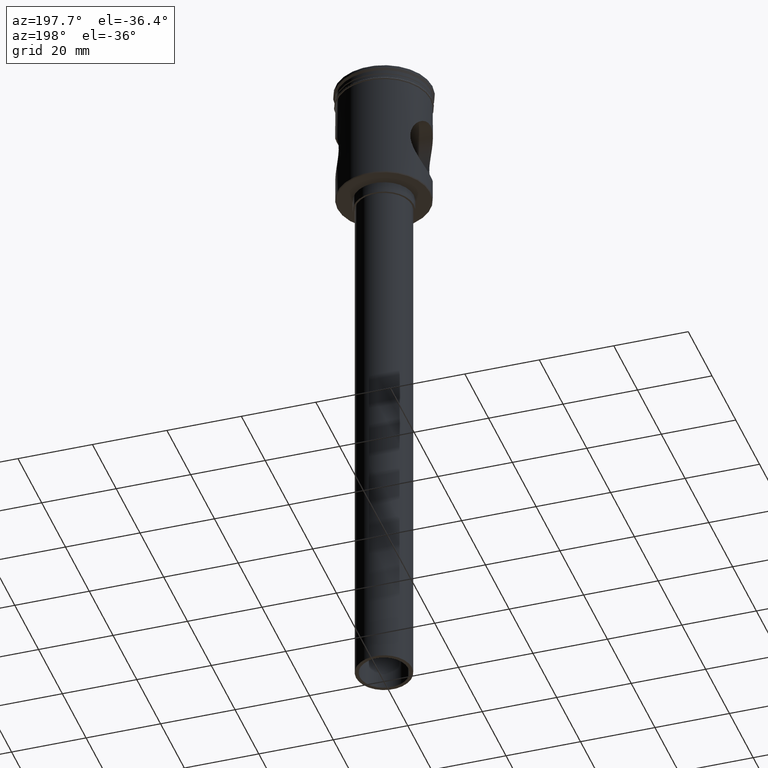
[diagram: clean part render]
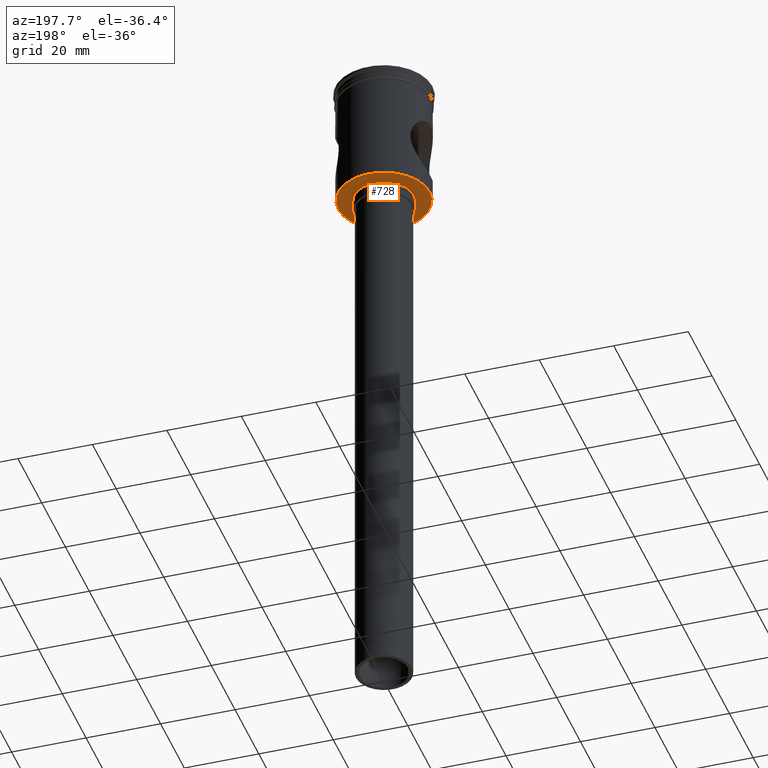
[diagram: same view with one face highlighted and labeled with its STEP entity id]
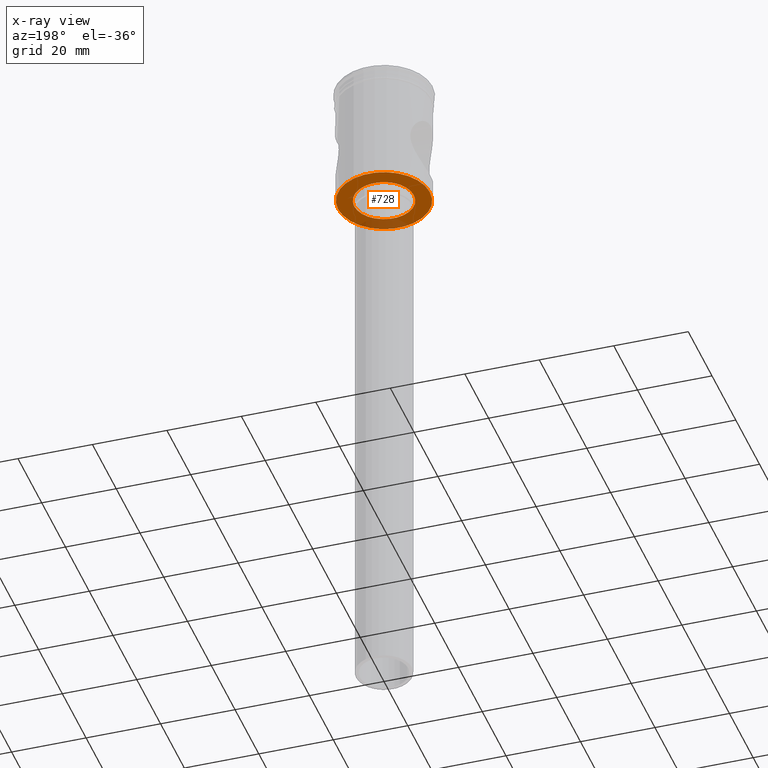
[diagram: x-ray of the same camera — body ghosted, the highlighted face saturated]
A machine part, auxiliary view. The second image highlights one B-rep face of the part: STEP entity #728.
The next image is the same camera in x-ray: the body ghosted, the highlighted face saturated — about 15% of this face is hidden behind the body in this view.
In plain terms, the highlighted planar face has unit normal (0, 0, -1).
Its self-contained STEP definition (entity closure, byte-faithful):
#44 = DIRECTION ( 'NONE',  ( -1.000000000000000000, 0.000000000000000000, 0.000000000000000000 ) ) ;
#104 = EDGE_CURVE ( 'NONE', #317, #1387, #1373, .T. ) ;
#124 = CARTESIAN_POINT ( 'NONE',  ( 0.000000000000000000, 0.000000000000000000, -33.50000000000000000 ) ) ;
#186 = CARTESIAN_POINT ( 'NONE',  ( 0.000000000000000000, 0.000000000000000000, -33.50000000000000000 ) ) ;
#219 = DIRECTION ( 'NONE',  ( 0.000000000000000000, 0.000000000000000000, -1.000000000000000000 ) ) ;
#222 = EDGE_LOOP ( 'NONE', ( #693, #1237 ) ) ;
#239 = ORIENTED_EDGE ( 'NONE', *, *, #104, .F. ) ;
#275 = FACE_BOUND ( 'NONE', #300, .T. ) ;
#300 = EDGE_LOOP ( 'NONE', ( #733, #239 ) ) ;
#317 = VERTEX_POINT ( 'NONE', #1541 ) ;
#330 = VERTEX_POINT ( 'NONE', #1519 ) ;
#369 = VERTEX_POINT ( 'NONE', #737 ) ;
#400 = CARTESIAN_POINT ( 'NONE',  ( 0.000000000000000000, 0.000000000000000000, -33.50000000000000000 ) ) ;
#405 = CIRCLE ( 'NONE', #1395, 12.29999999999999361 ) ;
#458 = DIRECTION ( 'NONE',  ( 0.000000000000000000, 0.000000000000000000, -1.000000000000000000 ) ) ;
#474 = DIRECTION ( 'NONE',  ( -1.000000000000000000, 0.000000000000000000, 0.000000000000000000 ) ) ;
#592 = CARTESIAN_POINT ( 'NONE',  ( 0.000000000000000000, 0.000000000000000000, -33.50000000000000000 ) ) ;
#655 = DIRECTION ( 'NONE',  ( 0.000000000000000000, 0.000000000000000000, -1.000000000000000000 ) ) ;
#693 = ORIENTED_EDGE ( 'NONE', *, *, #881, .T. ) ;
#728 = ADVANCED_FACE ( 'NONE', ( #1478, #275 ), #880, .T. ) ;
#733 = ORIENTED_EDGE ( 'NONE', *, *, #946, .F. ) ;
#737 = CARTESIAN_POINT ( 'NONE',  ( -12.29999999999999361, 1.518562030942717573E-15, -33.50000000000000000 ) ) ;
#822 = DIRECTION ( 'NONE',  ( -1.000000000000000000, 0.000000000000000000, 0.000000000000000000 ) ) ;
#880 = PLANE ( 'NONE',  #1064 ) ;
#881 = EDGE_CURVE ( 'NONE', #330, #369, #1085, .T. ) ;
#946 = EDGE_CURVE ( 'NONE', #1387, #317, #1175, .T. ) ;
#948 = AXIS2_PLACEMENT_3D ( 'NONE', #592, #458, #1158 ) ;
#1059 = DIRECTION ( 'NONE',  ( 0.000000000000000000, 0.000000000000000000, -1.000000000000000000 ) ) ;
#1064 = AXIS2_PLACEMENT_3D ( 'NONE', #1246, #655, #1126 ) ;
#1085 = CIRCLE ( 'NONE', #1218, 12.29999999999999361 ) ;
#1126 = DIRECTION ( 'NONE',  ( -1.000000000000000000, 0.000000000000000000, -0.000000000000000000 ) ) ;
#1153 = DIRECTION ( 'NONE',  ( 0.000000000000000000, 0.000000000000000000, -1.000000000000000000 ) ) ;
#1158 = DIRECTION ( 'NONE',  ( -1.000000000000000000, 0.000000000000000000, 0.000000000000000000 ) ) ;
#1175 = CIRCLE ( 'NONE', #1490, 8.000000000000000000 ) ;
#1218 = AXIS2_PLACEMENT_3D ( 'NONE', #186, #219, #822 ) ;
#1237 = ORIENTED_EDGE ( 'NONE', *, *, #1488, .T. ) ;
#1246 = CARTESIAN_POINT ( 'NONE',  ( 0.000000000000000000, 12.49999999999999289, -33.50000000000000000 ) ) ;
#1373 = CIRCLE ( 'NONE', #948, 8.000000000000000000 ) ;
#1387 = VERTEX_POINT ( 'NONE', #1515 ) ;
#1395 = AXIS2_PLACEMENT_3D ( 'NONE', #124, #1059, #474 ) ;
#1478 = FACE_OUTER_BOUND ( 'NONE', #222, .T. ) ;
#1488 = EDGE_CURVE ( 'NONE', #369, #330, #405, .T. ) ;
#1490 = AXIS2_PLACEMENT_3D ( 'NONE', #400, #1153, #44 ) ;
#1515 = CARTESIAN_POINT ( 'NONE',  ( 8.000000000000000000, 0.000000000000000000, -33.50000000000000000 ) ) ;
#1519 = CARTESIAN_POINT ( 'NONE',  ( 12.29999999999999361, 0.000000000000000000, -33.50000000000000000 ) ) ;
#1541 = CARTESIAN_POINT ( 'NONE',  ( -8.000000000000000000, 9.797174393178825657E-16, -33.50000000000000000 ) ) ;